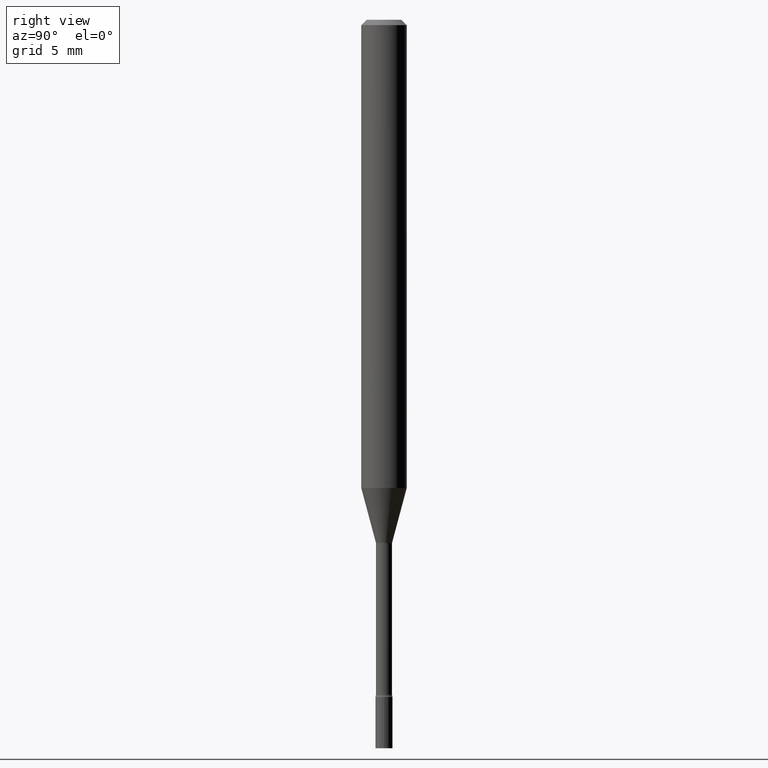
[diagram: clean part render]
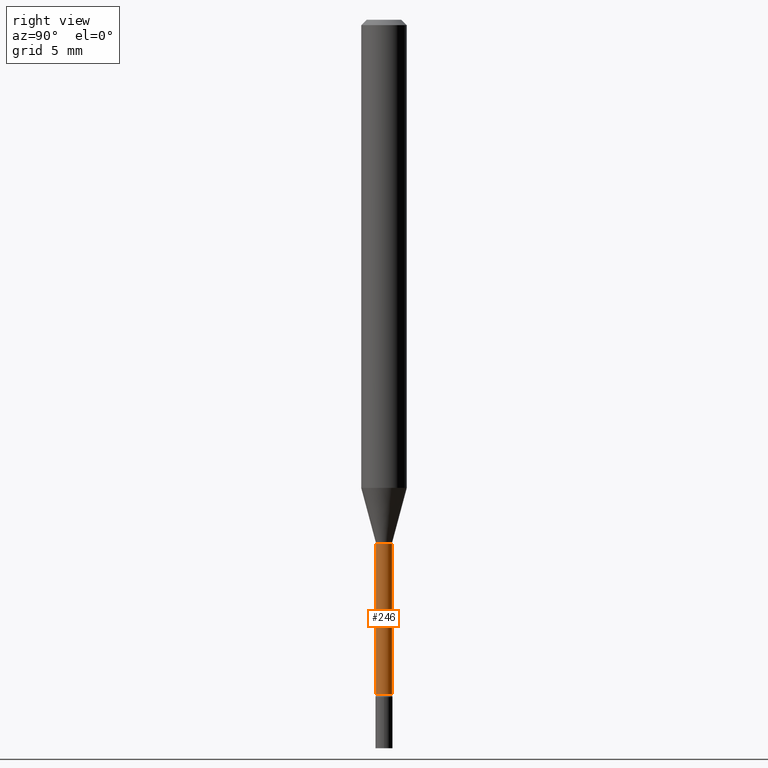
[diagram: same view with one face highlighted and labeled with its STEP entity id]
A machine part, right view. The second image highlights one B-rep face of the part: STEP entity #246.
In plain terms, the highlighted cylindrical surface (edge-blend (fillet) strip) has radius 0.5613 mm, axis along (-0, 0, 1).
Its self-contained STEP definition (entity closure, byte-faithful):
#29 = ORIENTED_EDGE ( 'NONE', *, *, #50, .T. ) ;
#41 = DIRECTION ( 'NONE',  ( -2.445478591985837749E-29, 3.491467325019568091E-15, 1.000000000000000000 ) ) ;
#50 = EDGE_CURVE ( 'NONE', #59, #339, #416, .T. ) ;
#59 = VERTEX_POINT ( 'NONE', #182 ) ;
#61 = CARTESIAN_POINT ( 'NONE',  ( 3.516536558558135871E-29, -5.020641984631854302E-15, -1.437974787463811133 ) ) ;
#81 = EDGE_CURVE ( 'NONE', #381, #59, #489, .T. ) ;
#88 = VECTOR ( 'NONE', #41, 39.37007874015748143 ) ;
#95 = DIRECTION ( 'NONE',  ( -2.445478591985837749E-29, 3.491467325019568091E-15, 1.000000000000000000 ) ) ;
#104 = EDGE_LOOP ( 'NONE', ( #109, #29, #335, #426 ) ) ;
#109 = ORIENTED_EDGE ( 'NONE', *, *, #81, .T. ) ;
#131 = DIRECTION ( 'NONE',  ( -6.982962677686265922E-15, -1.000000000000000000, 3.491467325019568091E-15 ) ) ;
#147 = FACE_OUTER_BOUND ( 'NONE', #104, .T. ) ;
#155 = AXIS2_PLACEMENT_3D ( 'NONE', #296, #258, #180 ) ;
#160 = CARTESIAN_POINT ( 'NONE',  ( 1.570299446030275858E-16, 0.02209999999999497783, -1.437974787463811133 ) ) ;
#180 = DIRECTION ( 'NONE',  ( -6.982962677686265922E-15, -1.000000000000000000, 0.000000000000000000 ) ) ;
#182 = CARTESIAN_POINT ( 'NONE',  ( 1.620037437533484049E-16, 0.02209999999999359352, -1.852672283192177582 ) ) ;
#229 = VECTOR ( 'NONE', #95, 39.37007874015748143 ) ;
#235 = LINE ( 'NONE', #299, #88 ) ;
#246 = ADVANCED_FACE ( 'NONE', ( #147 ), #320, .T. ) ;
#247 = CIRCLE ( 'NONE', #284, 0.02209999999999999812 ) ;
#251 = DIRECTION ( 'NONE',  ( -2.445478591985838029E-29, 3.491467325019567696E-15, 1.000000000000000000 ) ) ;
#258 = DIRECTION ( 'NONE',  ( -2.445478591985838029E-29, 3.491467325019567696E-15, 1.000000000000000000 ) ) ;
#280 = EDGE_CURVE ( 'NONE', #381, #283, #235, .T. ) ;
#283 = VERTEX_POINT ( 'NONE', #379 ) ;
#284 = AXIS2_PLACEMENT_3D ( 'NONE', #61, #251, #409 ) ;
#296 = CARTESIAN_POINT ( 'NONE',  ( 4.530670406511994597E-29, -6.468544740734887756E-15, -1.852672283192177582 ) ) ;
#299 = CARTESIAN_POINT ( 'NONE',  ( -1.543234751768666594E-16, -0.02210000000000002587, 7.716142788293254101E-17 ) ) ;
#320 = CYLINDRICAL_SURFACE ( 'NONE', #397, 0.02210000000000002587 ) ;
#335 = ORIENTED_EDGE ( 'NONE', *, *, #345, .F. ) ;
#339 = VERTEX_POINT ( 'NONE', #160 ) ;
#345 = EDGE_CURVE ( 'NONE', #283, #339, #247, .T. ) ;
#377 = CARTESIAN_POINT ( 'NONE',  ( 1.570299446029823003E-16, 0.02210000000000002587, -7.716142788293254101E-17 ) ) ;
#379 = CARTESIAN_POINT ( 'NONE',  ( -1.543234751768313085E-16, -0.02210000000000501841, -1.437974787463811133 ) ) ;
#381 = VERTEX_POINT ( 'NONE', #446 ) ;
#397 = AXIS2_PLACEMENT_3D ( 'NONE', #492, #406, #131 ) ;
#406 = DIRECTION ( 'NONE',  ( -2.445478591985838029E-29, 3.491467325019567696E-15, 1.000000000000000000 ) ) ;
#409 = DIRECTION ( 'NONE',  ( -6.982962677686265922E-15, -1.000000000000000000, 0.000000000000000000 ) ) ;
#416 = LINE ( 'NONE', #377, #229 ) ;
#426 = ORIENTED_EDGE ( 'NONE', *, *, #280, .F. ) ;
#446 = CARTESIAN_POINT ( 'NONE',  ( -1.543234751768215957E-16, -0.02210000000000652762, -1.852672283192177582 ) ) ;
#489 = CIRCLE ( 'NONE', #155, 0.02210000000000006057 ) ;
#492 = CARTESIAN_POINT ( 'NONE',  ( 0.000000000000000000, 0.000000000000000000, 0.000000000000000000 ) ) ;